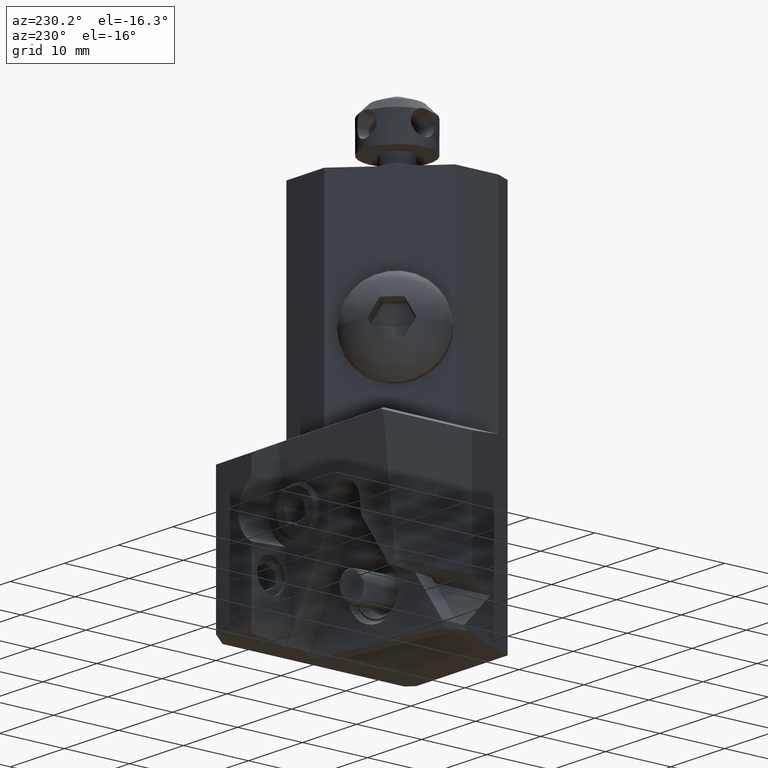
[diagram: clean part render]
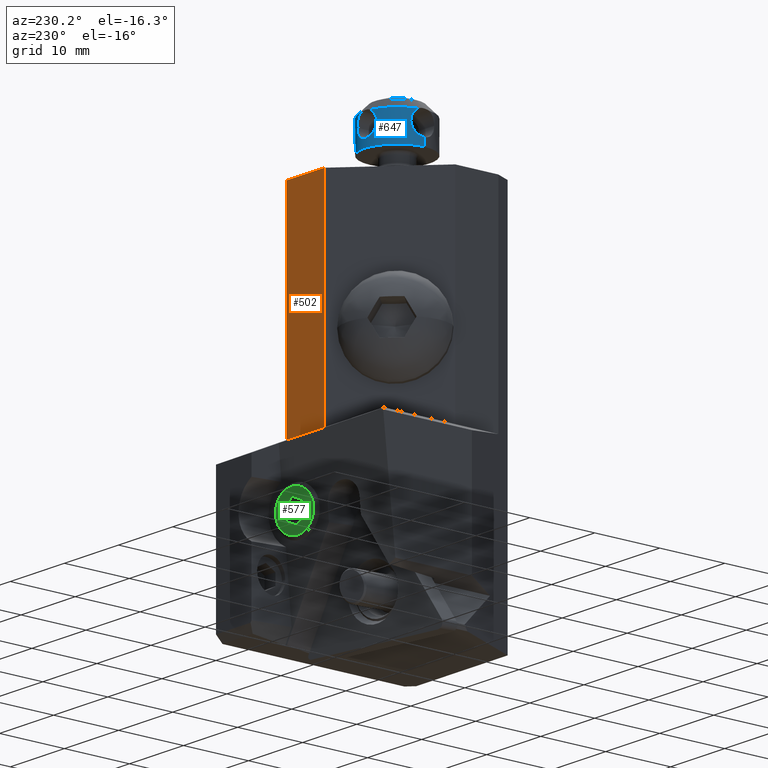
[diagram: same view with three faces highlighted in distinct colors, each labeled with its STEP entity id]
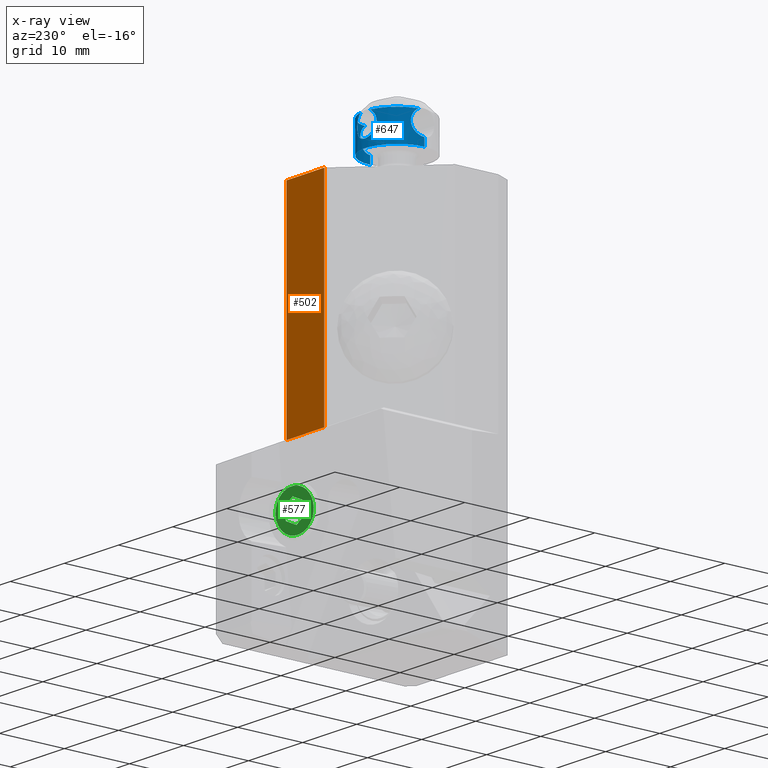
[diagram: x-ray of the same camera — body ghosted, the three highlighted faces saturated]
A machine part, auxiliary view with three faces highlighted in distinct colors.
The next image is the same camera in x-ray (body ghosted, the three faces saturated) — at least one of them is partly hidden behind the body in this view.
Their STEP definitions:

[orange] entity #502 — the highlighted planar face has unit normal (0, 1, 0).
#502=ADVANCED_FACE('',(#808),#715,.T.);
#715=PLANE('',#4045);
#808=FACE_OUTER_BOUND('',#1013,.T.);
#1013=EDGE_LOOP('',(#1313,#1314,#1315,#1316));
#1313=ORIENTED_EDGE('',*,*,#2782,.F.);
#1314=ORIENTED_EDGE('',*,*,#2785,.T.);
#1315=ORIENTED_EDGE('',*,*,#2786,.T.);
#1316=ORIENTED_EDGE('',*,*,#2772,.F.);
#2408=VERTEX_POINT('',#5730);
#2409=VERTEX_POINT('',#5731);
#2415=VERTEX_POINT('',#5747);
#2418=VERTEX_POINT('',#5755);
#2772=EDGE_CURVE('',#2408,#2409,#3315,.T.);
#2782=EDGE_CURVE('',#2415,#2408,#3325,.T.);
#2785=EDGE_CURVE('',#2415,#2418,#3326,.T.);
#2786=EDGE_CURVE('',#2418,#2409,#3327,.T.);
#3315=LINE('',#5729,#3594);
#3325=LINE('',#5748,#3604);
#3326=LINE('',#5754,#3605);
#3327=LINE('',#5756,#3606);
#3594=VECTOR('',#4536,1.);
#3604=VECTOR('',#4548,1.);
#3605=VECTOR('',#4555,1.);
#3606=VECTOR('',#4556,1.);
#4045=AXIS2_PLACEMENT_3D('',#5757,#4557,#4558);
#4536=DIRECTION('',(0.,0.,-1.));
#4548=DIRECTION('',(-1.,0.,0.));
#4555=DIRECTION('',(0.,0.,-1.));
#4556=DIRECTION('',(-1.,0.,-1.217824731983E-14));
#4557=DIRECTION('',(0.,1.,0.));
#4558=DIRECTION('',(0.,0.,-1.));
#5729=CARTESIAN_POINT('',(-8.001428534987,20.,0.));
#5730=CARTESIAN_POINT('',(-8.001428534987,20.,0.));
#5731=CARTESIAN_POINT('',(-8.001428534987,20.,-32.));
#5747=CARTESIAN_POINT('',(-1.,20.,0.));
#5748=CARTESIAN_POINT('',(-1.,20.,0.));
#5754=CARTESIAN_POINT('',(-1.,20.,0.));
#5755=CARTESIAN_POINT('',(-1.,20.,-32.));
#5756=CARTESIAN_POINT('',(-1.,20.,-32.));
#5757=CARTESIAN_POINT('',(-4.500714267493,20.,-16.));

[blue] entity #647 — the highlighted cylindrical surface (partial cylindrical patch) has radius 5 mm, axis along (0, 0, -1).
#201=B_SPLINE_CURVE_WITH_KNOTS('',3,(#7603,#7604,#7605,#7606,#7607,#7608,
#7609,#7610,#7611,#7612,#7613,#7614,#7615,#7616,#7617,#7618),
 .UNSPECIFIED.,.F.,.F.,(4,3,3,3,3,4),(0.,0.205771096228569,0.411048245454555,
0.623778160988491,0.84411863233404,1.),.UNSPECIFIED.);
#203=B_SPLINE_CURVE_WITH_KNOTS('',3,(#7653,#7654,#7655,#7656,#7657,#7658,
#7659,#7660,#7661,#7662,#7663,#7664,#7665,#7666,#7667,#7668,#7669,#7670,
#7671,#7672,#7673,#7674,#7675,#7676,#7677,#7678,#7679,#7680,#7681,#7682,
#7683),.UNSPECIFIED.,.F.,.F.,(4,3,3,3,3,3,3,3,3,3,4),(0.,0.102623356131942,
0.204954102622191,0.311614629519585,0.4217091842334,0.527323977403394,0.627977092797909,
0.730035534890141,0.837757171451121,0.947638694721617,1.),.UNSPECIFIED.);
#205=B_SPLINE_CURVE_WITH_KNOTS('',3,(#7718,#7719,#7720,#7721,#7722,#7723,
#7724,#7725,#7726,#7727,#7728,#7729,#7730,#7731,#7732,#7733),
 .UNSPECIFIED.,.F.,.F.,(4,3,3,3,3,4),(0.,0.205293332409964,0.410001312608657,
0.62337082057149,0.843609944190969,1.),.UNSPECIFIED.);
#206=B_SPLINE_CURVE_WITH_KNOTS('',3,(#7736,#7737,#7738,#7739,#7740,#7741,
#7742,#7743,#7744,#7745,#7746,#7747,#7748),.UNSPECIFIED.,.F.,.F.,(4,3,3,
3,4),(0.,0.297307848557445,0.593767984212875,0.902771830638389,1.),
 .UNSPECIFIED.);
#211=B_SPLINE_CURVE_WITH_KNOTS('',3,(#7813,#7814,#7815,#7816,#7817,#7818,
#7819,#7820,#7821,#7822,#7823,#7824,#7825),.UNSPECIFIED.,.F.,.F.,(4,3,3,
3,4),(0.,0.297307848557769,0.593767984213543,0.902771830639414,1.),
 .UNSPECIFIED.);
#212=B_SPLINE_CURVE_WITH_KNOTS('',3,(#7826,#7827,#7828,#7829,#7830,#7831,
#7832,#7833,#7834,#7835,#7836,#7837,#7838),.UNSPECIFIED.,.F.,.F.,(4,3,3,
3,4),(0.,0.316759293663231,0.633497929988799,0.948057544812003,1.),
 .UNSPECIFIED.);
#213=B_SPLINE_CURVE_WITH_KNOTS('',3,(#7839,#7840,#7841,#7842,#7843,#7844,
#7845,#7846,#7847,#7848,#7849,#7850,#7851),.UNSPECIFIED.,.F.,.F.,(4,3,3,
3,4),(0.,0.316759293662285,0.633497929987471,0.948057544810404,1.),
 .UNSPECIFIED.);
#306=CYLINDRICAL_SURFACE('',#4313,5.);
#436=CIRCLE('',#4294,5.);
#443=CIRCLE('',#4310,5.);
#444=CIRCLE('',#4311,5.);
#647=ADVANCED_FACE('',(#944),#306,.T.);
#944=FACE_OUTER_BOUND('',#1167,.T.);
#1167=EDGE_LOOP('',(#2080,#2081,#2082,#2083,#2084,#2085,#2086,#2087,#2088,
#2089,#2090,#2091));
#2080=ORIENTED_EDGE('',*,*,#3165,.F.);
#2081=ORIENTED_EDGE('',*,*,#3151,.T.);
#2082=ORIENTED_EDGE('',*,*,#3166,.F.);
#2083=ORIENTED_EDGE('',*,*,#3162,.F.);
#2084=ORIENTED_EDGE('',*,*,#3167,.T.);
#2085=ORIENTED_EDGE('',*,*,#3147,.F.);
#2086=ORIENTED_EDGE('',*,*,#3130,.F.);
#2087=ORIENTED_EDGE('',*,*,#3120,.T.);
#2088=ORIENTED_EDGE('',*,*,#3129,.F.);
#2089=ORIENTED_EDGE('',*,*,#3155,.F.);
#2090=ORIENTED_EDGE('',*,*,#3157,.T.);
#2091=ORIENTED_EDGE('',*,*,#3164,.F.);
#2629=VERTEX_POINT('',#7312);
#2630=VERTEX_POINT('',#7313);
#2637=VERTEX_POINT('',#7410);
#2638=VERTEX_POINT('',#7413);
#2649=VERTEX_POINT('',#7619);
#2651=VERTEX_POINT('',#7652);
#2652=VERTEX_POINT('',#7684);
#2654=VERTEX_POINT('',#7717);
#2655=VERTEX_POINT('',#7749);
#2656=VERTEX_POINT('',#7794);
#2657=VERTEX_POINT('',#7796);
#2658=VERTEX_POINT('',#7810);
#3120=EDGE_CURVE('',#2629,#2630,#436,.T.);
#3129=EDGE_CURVE('',#2637,#2630,#3500,.T.);
#3130=EDGE_CURVE('',#2629,#2638,#3501,.T.);
#3147=EDGE_CURVE('',#2638,#2649,#201,.T.);
#3151=EDGE_CURVE('',#2652,#2651,#203,.T.);
#3155=EDGE_CURVE('',#2654,#2637,#205,.T.);
#3157=EDGE_CURVE('',#2654,#2655,#206,.T.);
#3162=EDGE_CURVE('',#2656,#2657,#443,.T.);
#3164=EDGE_CURVE('',#2658,#2655,#444,.T.);
#3165=EDGE_CURVE('',#2652,#2658,#211,.T.);
#3166=EDGE_CURVE('',#2657,#2651,#212,.T.);
#3167=EDGE_CURVE('',#2656,#2649,#213,.T.);
#3500=LINE('',#7411,#3781);
#3501=LINE('',#7412,#3782);
#3781=VECTOR('',#5239,1.);
#3782=VECTOR('',#5240,1.);
#4294=AXIS2_PLACEMENT_3D('',#7311,#5229,#5230);
#4310=AXIS2_PLACEMENT_3D('',#7795,#5273,#5274);
#4311=AXIS2_PLACEMENT_3D('',#7811,#5275,#5276);
#4313=AXIS2_PLACEMENT_3D('',#7852,#5279,#5280);
#5229=DIRECTION('',(0.,0.,1.));
#5230=DIRECTION('',(1.,0.,0.));
#5239=DIRECTION('',(0.,0.,-1.));
#5240=DIRECTION('',(0.,0.,1.));
#5273=DIRECTION('',(0.,0.,1.));
#5274=DIRECTION('',(0.98566397201334,0.168720284124007,0.));
#5275=DIRECTION('',(0.,0.,1.));
#5276=DIRECTION('',(-0.168720284124704,0.985663972013221,0.));
#5279=DIRECTION('',(0.,0.,-1.));
#5280=DIRECTION('',(-1.,0.,0.));
#7311=CARTESIAN_POINT('',(-9.5,10.,3.));
#7312=CARTESIAN_POINT('',(-4.5,10.,3.));
#7313=CARTESIAN_POINT('',(-14.5,10.,3.));
#7410=CARTESIAN_POINT('',(-14.5,10.,4.2));
#7411=CARTESIAN_POINT('',(-14.5,10.,4.2));
#7412=CARTESIAN_POINT('',(-4.5,10.,3.));
#7413=CARTESIAN_POINT('',(-4.5,10.,4.2));
#7603=CARTESIAN_POINT('',(-4.5,10.,4.2));
#7604=CARTESIAN_POINT('',(-4.5,10.1945268792853,4.2));
#7605=CARTESIAN_POINT('',(-4.51195609634139,10.3917189952137,4.2325309016424));
#7606=CARTESIAN_POINT('',(-4.53316745896126,10.5749560933486,4.29429618904063));
#7607=CARTESIAN_POINT('',(-4.55434987927824,10.7579431696583,4.35597719945542));
#7608=CARTESIAN_POINT('',(-4.58514230628104,10.9320013033221,4.44823958801057));
#7609=CARTESIAN_POINT('',(-4.61906437079539,11.0846508118104,4.56349987245422));
#7610=CARTESIAN_POINT('',(-4.65420596002677,11.2427881893688,4.68290385415755));
#7611=CARTESIAN_POINT('',(-4.69347186876178,11.3822983930947,4.83014935884406));
#7612=CARTESIAN_POINT('',(-4.72811724588757,11.4930287944324,4.99458216695962));
#7613=CARTESIAN_POINT('',(-4.76393763183307,11.6075146520237,5.16459176527964));
#7614=CARTESIAN_POINT('',(-4.79553746740246,11.6943926325676,5.35815146573033));
#7615=CARTESIAN_POINT('',(-4.81444357528041,11.7451535722592,5.55904761115167));
#7616=CARTESIAN_POINT('',(-4.82791677139611,11.7813277070889,5.7022136812717));
#7617=CARTESIAN_POINT('',(-4.83523848412376,11.8,5.8517211455471));
#7618=CARTESIAN_POINT('',(-4.83523848412376,11.8,6.));
#7619=CARTESIAN_POINT('',(-4.83523848412376,11.8,6.));
#7652=CARTESIAN_POINT('',(-7.7,14.6647615158762,6.));
#7653=CARTESIAN_POINT('',(-11.2999999999998,14.6647615158763,6.));
#7654=CARTESIAN_POINT('',(-11.2999999999998,14.6647615158763,5.80593375844661));
#7655=CARTESIAN_POINT('',(-11.2676123194841,14.6775866437323,5.60921723723297));
#7656=CARTESIAN_POINT('',(-11.2061884220832,14.6998852186356,5.42648359365298));
#7657=CARTESIAN_POINT('',(-11.1448648410602,14.722147375917,5.24404838729414));
#7658=CARTESIAN_POINT('',(-11.0532136502351,14.7541397194814,5.07054806265327));
#7659=CARTESIAN_POINT('',(-10.9386192656168,14.7885670725799,4.91816146833445));
#7660=CARTESIAN_POINT('',(-10.8192436323038,14.8244308462989,4.75941681199014));
#7661=CARTESIAN_POINT('',(-10.6717531201509,14.8636761494896,4.61920976616133));
#7662=CARTESIAN_POINT('',(-10.506824383622,14.8975815113732,4.50791935186325));
#7663=CARTESIAN_POINT('',(-10.3368825403424,14.9325174468373,4.39324619942658));
#7664=CARTESIAN_POINT('',(-10.1432734738856,14.9625453328182,4.30614888889446));
#7665=CARTESIAN_POINT('',(-9.94242873358928,14.9803872154376,4.255220124));
#7666=CARTESIAN_POINT('',(-9.74969661239539,14.9975084199973,4.20634849871665));
#7667=CARTESIAN_POINT('',(-9.54469377124601,15.003752419574,4.18953260727119));
#7668=CARTESIAN_POINT('',(-9.34595202686422,14.99762635878,4.20660399744709));
#7669=CARTESIAN_POINT('',(-9.15621611772525,14.9917778959027,4.22290181019582));
#7670=CARTESIAN_POINT('',(-8.96706808952732,14.9746138652068,4.27035613766052));
#7671=CARTESIAN_POINT('',(-8.79333178819243,14.9498101012484,4.34451818541529));
#7672=CARTESIAN_POINT('',(-8.61706325738888,14.9246448191643,4.41976115478136));
#7673=CARTESIAN_POINT('',(-8.45198008690175,14.8911355038928,4.52426370679297));
#7674=CARTESIAN_POINT('',(-8.30939604074986,14.856177736885,4.6500139955474));
#7675=CARTESIAN_POINT('',(-8.15906478313085,14.8193205623297,4.7825968445028));
#7676=CARTESIAN_POINT('',(-8.02961108752249,14.7800356209848,4.94244116220886));
#7677=CARTESIAN_POINT('',(-7.93100991625036,14.7474488008925,5.11780381031468));
#7678=CARTESIAN_POINT('',(-7.83060094765729,14.7142645196818,5.29638163448127));
#7679=CARTESIAN_POINT('',(-7.75946877901967,14.6874201134123,5.49655849220244));
#7680=CARTESIAN_POINT('',(-7.72504005507584,14.6743467130621,5.70080575888758));
#7681=CARTESIAN_POINT('',(-7.70842942082246,14.6680392625735,5.79934779749741));
#7682=CARTESIAN_POINT('',(-7.7,14.6647615158762,5.89986893351538));
#7683=CARTESIAN_POINT('',(-7.7,14.6647615158762,6.));
#7684=CARTESIAN_POINT('',(-11.2999999999998,14.6647615158763,6.));
#7717=CARTESIAN_POINT('',(-14.1647615158762,11.8,6.));
#7718=CARTESIAN_POINT('',(-14.1647615158762,11.8,6.));
#7719=CARTESIAN_POINT('',(-14.1647615158762,11.8,5.8059337584466));
#7720=CARTESIAN_POINT('',(-14.1775866437323,11.7676123194841,5.60921723723299));
#7721=CARTESIAN_POINT('',(-14.1998852186356,11.7061884220832,5.42648359365298));
#7722=CARTESIAN_POINT('',(-14.222147375917,11.6448648410602,5.24404838729414));
#7723=CARTESIAN_POINT('',(-14.2541397194814,11.5532136502351,5.07054806265327));
#7724=CARTESIAN_POINT('',(-14.2885670725799,11.4386192656168,4.91816146833445));
#7725=CARTESIAN_POINT('',(-14.3244308462989,11.3192436323038,4.75941681199014));
#7726=CARTESIAN_POINT('',(-14.3636761494896,11.1717531201509,4.61920976616133));
#7727=CARTESIAN_POINT('',(-14.3975815113732,11.006824383622,4.50791935186325));
#7728=CARTESIAN_POINT('',(-14.4325174468373,10.8368825403424,4.39324619942658));
#7729=CARTESIAN_POINT('',(-14.4625453328182,10.6432734738856,4.30614888889446));
#7730=CARTESIAN_POINT('',(-14.4803872154376,10.4424287335893,4.255220124));
#7731=CARTESIAN_POINT('',(-14.4931499182361,10.2987599412479,4.21878962481427));
#7732=CARTESIAN_POINT('',(-14.5,10.1487642085533,4.2));
#7733=CARTESIAN_POINT('',(-14.5,10.,4.2));
#7736=CARTESIAN_POINT('',(-14.1647615158762,11.8,6.));
#7737=CARTESIAN_POINT('',(-14.1647615158762,11.8,6.1940662415534));
#7738=CARTESIAN_POINT('',(-14.1775866437323,11.7676123194841,6.39078276276701));
#7739=CARTESIAN_POINT('',(-14.1998852186356,11.7061884220832,6.57351640634702));
#7740=CARTESIAN_POINT('',(-14.222147375917,11.6448648410602,6.75595161270586));
#7741=CARTESIAN_POINT('',(-14.2541397194814,11.5532136502351,6.92945193734673));
#7742=CARTESIAN_POINT('',(-14.2885670725799,11.4386192656168,7.08183853166555));
#7743=CARTESIAN_POINT('',(-14.3244308462989,11.3192436323038,7.24058318800986));
#7744=CARTESIAN_POINT('',(-14.3636761494896,11.1717531201509,7.38079023383867));
#7745=CARTESIAN_POINT('',(-14.3975815113732,11.006824383622,7.49208064813675));
#7746=CARTESIAN_POINT('',(-14.4083800253816,10.9542962531772,7.52752551676631));
#7747=CARTESIAN_POINT('',(-14.4187089979161,10.8997480814104,7.5602862469535));
#7748=CARTESIAN_POINT('',(-14.4283198600658,10.8436014206216,7.59007441433578));
#7749=CARTESIAN_POINT('',(-14.4283198600658,10.8436014206216,7.59007441433578));
#7794=CARTESIAN_POINT('',(-4.57168013993468,10.8436014206221,7.59007441433551));
#7795=CARTESIAN_POINT('',(-9.5,10.,7.590074414335));
#7796=CARTESIAN_POINT('',(-8.65639857937581,14.9283198600661,7.59007441433439));
#7810=CARTESIAN_POINT('',(-10.3436014206235,14.9283198600654,7.59007441433474));
#7811=CARTESIAN_POINT('',(-9.5,10.,7.590074414334));
#7813=CARTESIAN_POINT('',(-11.2999999999998,14.6647615158763,6.));
#7814=CARTESIAN_POINT('',(-11.2999999999998,14.6647615158763,6.19406624155339));
#7815=CARTESIAN_POINT('',(-11.2676123194841,14.6775866437323,6.39078276276703));
#7816=CARTESIAN_POINT('',(-11.2061884220832,14.6998852186356,6.57351640634702));
#7817=CARTESIAN_POINT('',(-11.1448648410602,14.722147375917,6.75595161270586));
#7818=CARTESIAN_POINT('',(-11.0532136502351,14.7541397194814,6.92945193734673));
#7819=CARTESIAN_POINT('',(-10.9386192656168,14.7885670725799,7.08183853166555));
#7820=CARTESIAN_POINT('',(-10.8192436323038,14.8244308462989,7.24058318800986));
#7821=CARTESIAN_POINT('',(-10.6717531201509,14.8636761494896,7.38079023383867));
#7822=CARTESIAN_POINT('',(-10.506824383622,14.8975815113732,7.49208064813675));
#7823=CARTESIAN_POINT('',(-10.4542962531778,14.9083800253814,7.5275255167659));
#7824=CARTESIAN_POINT('',(-10.3997480814117,14.9187089979158,7.56028624695283));
#7825=CARTESIAN_POINT('',(-10.3436014206235,14.9283198600654,7.59007441433474));
#7826=CARTESIAN_POINT('',(-8.65639857937581,14.9283198600661,7.59007441433439));
#7827=CARTESIAN_POINT('',(-8.47563755541416,14.8973782286507,7.49417308089192));
#7828=CARTESIAN_POINT('',(-8.31022640580034,14.8584731429779,7.36595602682358));
#7829=CARTESIAN_POINT('',(-8.17278346830002,14.8206323525013,7.21593432305461));
#7830=CARTESIAN_POINT('',(-8.03536794677667,14.7827991101916,7.06594254437055));
#7831=CARTESIAN_POINT('',(-7.92190823907839,14.7451855676299,6.88974778230461));
#7832=CARTESIAN_POINT('',(-7.84208038877207,14.7171286353783,6.70092978443338));
#7833=CARTESIAN_POINT('',(-7.76289189764643,14.689296417398,6.51362407231149));
#7834=CARTESIAN_POINT('',(-7.71473984217263,14.6704395261427,6.30814685452972));
#7835=CARTESIAN_POINT('',(-7.70296553598363,14.6659047498998,6.10328182384821));
#7836=CARTESIAN_POINT('',(-7.70098968790335,14.6651437684211,6.06890339244923));
#7837=CARTESIAN_POINT('',(-7.7,14.6647615158762,6.03444357144522));
#7838=CARTESIAN_POINT('',(-7.7,14.6647615158762,6.));
#7839=CARTESIAN_POINT('',(-4.57168013993468,10.8436014206221,7.59007441433551));
#7840=CARTESIAN_POINT('',(-4.60262177134995,11.0243624445836,7.49417308089355));
#7841=CARTESIAN_POINT('',(-4.64152685702151,11.1897735941974,7.36595602682551));
#7842=CARTESIAN_POINT('',(-4.67936764749807,11.3272165316977,7.21593432305708));
#7843=CARTESIAN_POINT('',(-4.71720088980773,11.4646320532213,7.06594254437329));
#7844=CARTESIAN_POINT('',(-4.75481443236952,11.5780917609199,6.88974778230758));
#7845=CARTESIAN_POINT('',(-4.78287136462124,11.6579196112266,6.70092978443653));
#7846=CARTESIAN_POINT('',(-4.8107035826016,11.7371081023526,6.51362407231476));
#7847=CARTESIAN_POINT('',(-4.82956047385709,11.7852601578268,6.30814685453304));
#7848=CARTESIAN_POINT('',(-4.83409525010014,11.7970344640162,6.1032818238515));
#7849=CARTESIAN_POINT('',(-4.83485623157886,11.7990103120966,6.06890339245142));
#7850=CARTESIAN_POINT('',(-4.83523848412376,11.8,6.03444357144631));
#7851=CARTESIAN_POINT('',(-4.83523848412376,11.8,6.));
#7852=CARTESIAN_POINT('',(-9.5,10.,7.681875902621));

[green] entity #577 — the highlighted planar face has unit normal (-0.1556, 0.9824, -0.1033).
#245=FACE_BOUND('',#1094,.T.);
#246=FACE_BOUND('',#1095,.T.);
#388=CIRCLE('',#4186,3.000000000005);
#389=CIRCLE('',#4187,3.000000000004);
#390=CIRCLE('',#4189,3.000000000003);
#577=ADVANCED_FACE('',(#245,#246),#749,.T.);
#749=PLANE('',#4190);
#1094=EDGE_LOOP('',(#1708,#1709,#1710));
#1095=EDGE_LOOP('',(#1711,#1712,#1713,#1714,#1715,#1716));
#1708=ORIENTED_EDGE('',*,*,#2968,.F.);
#1709=ORIENTED_EDGE('',*,*,#2967,.F.);
#1710=ORIENTED_EDGE('',*,*,#2966,.F.);
#1711=ORIENTED_EDGE('',*,*,#2969,.F.);
#1712=ORIENTED_EDGE('',*,*,#2970,.T.);
#1713=ORIENTED_EDGE('',*,*,#2971,.F.);
#1714=ORIENTED_EDGE('',*,*,#2972,.F.);
#1715=ORIENTED_EDGE('',*,*,#2973,.T.);
#1716=ORIENTED_EDGE('',*,*,#2974,.F.);
#2526=VERTEX_POINT('',#6150);
#2527=VERTEX_POINT('',#6152);
#2528=VERTEX_POINT('',#6154);
#2529=VERTEX_POINT('',#6159);
#2530=VERTEX_POINT('',#6160);
#2531=VERTEX_POINT('',#6162);
#2532=VERTEX_POINT('',#6164);
#2533=VERTEX_POINT('',#6166);
#2534=VERTEX_POINT('',#6168);
#2966=EDGE_CURVE('',#2527,#2528,#388,.T.);
#2967=EDGE_CURVE('',#2528,#2526,#389,.T.);
#2968=EDGE_CURVE('',#2526,#2527,#390,.T.);
#2969=EDGE_CURVE('',#2529,#2530,#3436,.T.);
#2970=EDGE_CURVE('',#2529,#2531,#3437,.T.);
#2971=EDGE_CURVE('',#2532,#2531,#3438,.T.);
#2972=EDGE_CURVE('',#2533,#2532,#3439,.T.);
#2973=EDGE_CURVE('',#2533,#2534,#3440,.T.);
#2974=EDGE_CURVE('',#2530,#2534,#3441,.T.);
#3436=LINE('',#6158,#3715);
#3437=LINE('',#6161,#3716);
#3438=LINE('',#6163,#3717);
#3439=LINE('',#6165,#3718);
#3440=LINE('',#6167,#3719);
#3441=LINE('',#6169,#3720);
#3715=VECTOR('',#4955,1.);
#3716=VECTOR('',#4956,1.);
#3717=VECTOR('',#4957,1.);
#3718=VECTOR('',#4958,1.);
#3719=VECTOR('',#4959,1.);
#3720=VECTOR('',#4960,1.);
#4186=AXIS2_PLACEMENT_3D('',#6153,#4947,#4948);
#4187=AXIS2_PLACEMENT_3D('',#6155,#4949,#4950);
#4189=AXIS2_PLACEMENT_3D('',#6157,#4953,#4954);
#4190=AXIS2_PLACEMENT_3D('',#6170,#4961,#4962);
#4947=DIRECTION('',(0.155598304243504,-0.982409029106924,0.103255349719702));
#4948=DIRECTION('',(0.549732677523911,0.172964239312446,0.817237636909522));
#4949=DIRECTION('',(0.155598304243504,-0.982409029106924,0.103255349719702));
#4950=DIRECTION('',(-0.820721116442303,-0.0703979505961211,0.566975288330598));
#4953=DIRECTION('',(0.155598304243504,-0.982409029106924,0.103255349719702));
#4954=DIRECTION('',(-0.54973267752576,-0.172964239312604,-0.817237636908244));
#4955=DIRECTION('',(0.0657219058038219,0.114592449894603,0.991236198655329));
#4956=DIRECTION('',(0.820721116445594,0.0703979505972395,-0.566975288325696));
#4957=DIRECTION('',(-0.886443022249107,-0.184990400491801,-0.424260910327303));
#4958=DIRECTION('',(-0.0657219058038227,-0.114592449894505,-0.99123619865534));
#4959=DIRECTION('',(-0.820721116445551,-0.0703979505971758,0.566975288325766));
#4960=DIRECTION('',(0.886443022249145,0.184990400491809,0.424260910327221));
#4961=DIRECTION('',(-0.155598304244605,0.982409029106434,-0.103255349722704));
#4962=DIRECTION('',(-0.54973267752459,-0.172964239315633,-0.81723763690839));
#6150=CARTESIAN_POINT('',(-9.501284854732,23.91916028616,-45.51659094186));
#6152=CARTESIAN_POINT('',(-6.202888789581,24.95694572204,-40.61316512041));
#6153=CARTESIAN_POINT('',(-7.852086822156,24.4380530041,-43.06487803114));
#6154=CARTESIAN_POINT('',(-10.31425017149,24.22685915231,-41.36395216615));
#6155=CARTESIAN_POINT('',(-7.852086822156,24.4380530041,-43.06487803114));
#6157=CARTESIAN_POINT('',(-7.852086822156,24.4380530041,-43.06487803114));
#6158=CARTESIAN_POINT('',(-9.413040580578,24.11230001866,-43.81196684103));
#6159=CARTESIAN_POINT('',(-9.413040580578,24.11230001866,-43.81196684103));
#6160=CARTESIAN_POINT('',(-9.297309672555,24.31408796313,-42.06648085835));
#6161=CARTESIAN_POINT('',(-9.413040580578,24.11230001866,-43.81196684103));
#6162=CARTESIAN_POINT('',(-7.967817730175,24.23626505963,-44.81036401381));
#6163=CARTESIAN_POINT('',(-6.40686397175,24.56201804507,-44.06327520392));
#6164=CARTESIAN_POINT('',(-6.40686397175,24.56201804507,-44.06327520392));
#6165=CARTESIAN_POINT('',(-6.291133063727,24.76380598954,-42.31778922124));
#6166=CARTESIAN_POINT('',(-6.291133063727,24.76380598954,-42.31778922124));
#6167=CARTESIAN_POINT('',(-6.291133063727,24.76380598954,-42.31778922124));
#6168=CARTESIAN_POINT('',(-7.736355914129,24.63984094857,-41.31939204846));
#6169=CARTESIAN_POINT('',(-9.297309672555,24.31408796313,-42.06648085835));
#6170=CARTESIAN_POINT('',(-7.851477360814,24.4381052811,-43.06529906272));